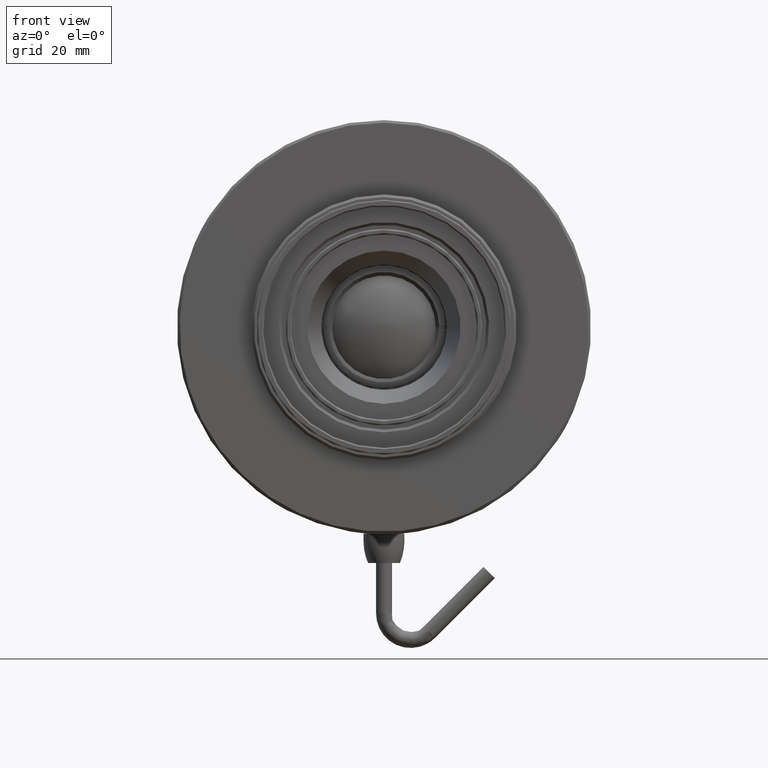
[diagram: clean part render]
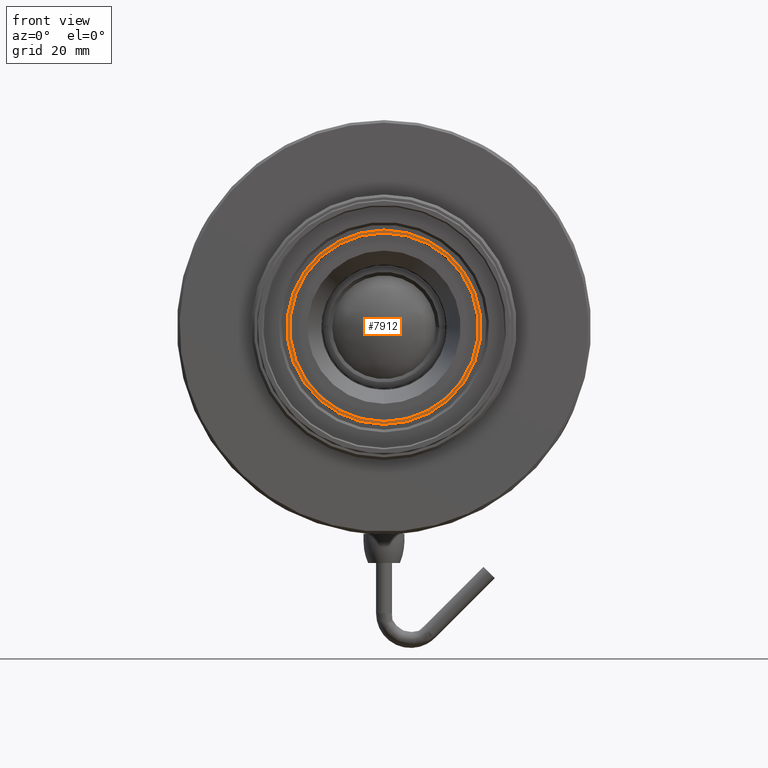
[diagram: same view with one face highlighted and labeled with its STEP entity id]
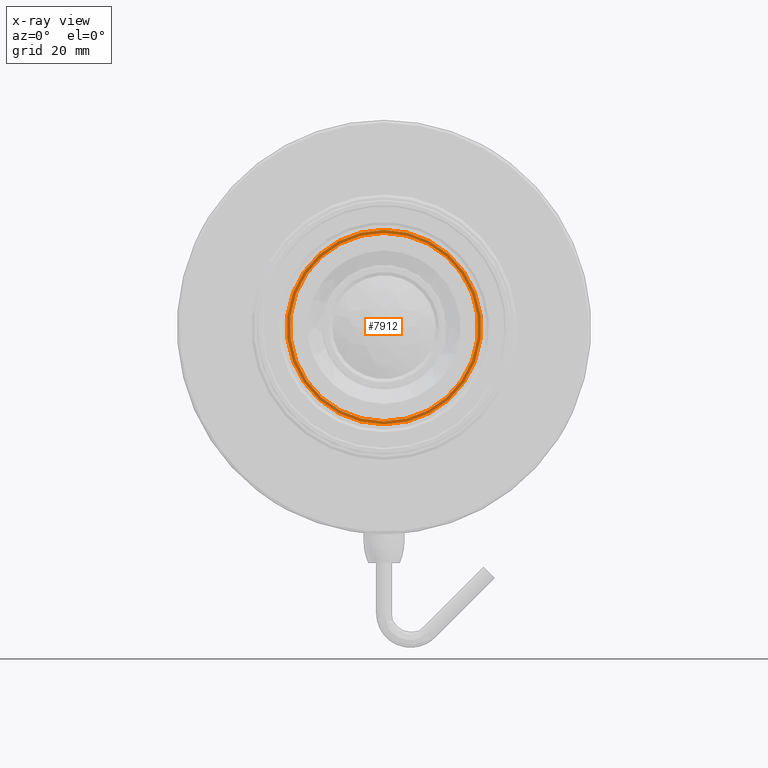
[diagram: x-ray of the same camera — body ghosted, the highlighted face saturated]
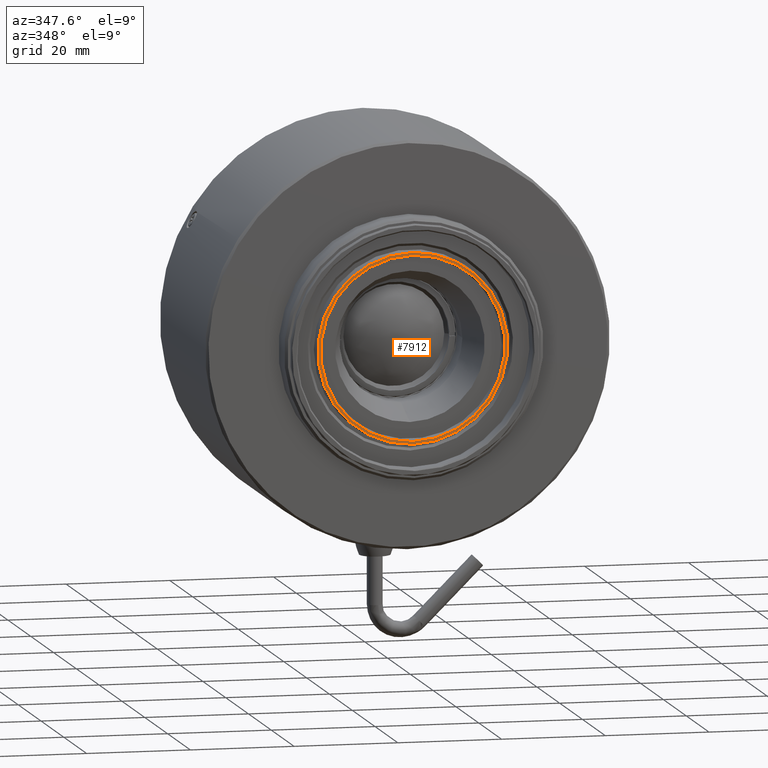
[diagram: same view with one face highlighted and labeled with its STEP entity id]
A machine part, front view. The second image highlights one B-rep face of the part: STEP entity #7912.
The next image is the same camera in x-ray: the body ghosted, the highlighted face saturated — about 0% of this face is hidden behind the body in this view.
A second angle (auxiliary view) of the same face is appended — the face is thin or edge-on in the first view.
In plain terms, the highlighted planar face has unit normal (0, 1, -0).
Its self-contained STEP definition (entity closure, byte-faithful):
#638 = EDGE_LOOP ( 'NONE', ( #12016 ) ) ;
#797 = PLANE ( 'NONE',  #1138 ) ;
#1138 = AXIS2_PLACEMENT_3D ( 'NONE', #8056, #4508, #4323 ) ;
#2638 = DIRECTION ( 'NONE',  ( 0.000000000000000000, 0.000000000000000000, -1.000000000000000000 ) ) ;
#4323 = DIRECTION ( 'NONE',  ( -1.000000000000000000, 6.123031769111889989E-17, 0.000000000000000000 ) ) ;
#4508 = DIRECTION ( 'NONE',  ( 6.123031769111889989E-17, 1.000000000000000000, -0.000000000000000000 ) ) ;
#4881 = AXIS2_PLACEMENT_3D ( 'NONE', #9074, #8216, #5258 ) ;
#5100 = VERTEX_POINT ( 'NONE', #8790 ) ;
#5258 = DIRECTION ( 'NONE',  ( 0.000000000000000000, 0.000000000000000000, 1.000000000000000000 ) ) ;
#5357 = DIRECTION ( 'NONE',  ( 0.000000000000000000, -1.000000000000000000, 0.000000000000000000 ) ) ;
#6267 = CARTESIAN_POINT ( 'NONE',  ( -3.469446951953614189E-15, -62.10603120081729855, -1.734723475976810250E-15 ) ) ;
#6409 = AXIS2_PLACEMENT_3D ( 'NONE', #6267, #5357, #2638 ) ;
#7074 = CARTESIAN_POINT ( 'NONE',  ( -3.469446951953614189E-15, -62.10603120081729145, 18.30000000074510069 ) ) ;
#7381 = CIRCLE ( 'NONE', #4881, 18.30000000074510069 ) ;
#7912 = ADVANCED_FACE ( 'NONE', ( #9823, #10867 ), #797, .F. ) ;
#7937 = CIRCLE ( 'NONE', #6409, 17.75000000000000355 ) ;
#8056 = CARTESIAN_POINT ( 'NONE',  ( -3.258067114780390426E-15, -62.10603120081729855, 17.75000000000000355 ) ) ;
#8216 = DIRECTION ( 'NONE',  ( 0.000000000000000000, 1.000000000000000000, -1.875376730785738212E-16 ) ) ;
#8790 = CARTESIAN_POINT ( 'NONE',  ( -3.469446951953614189E-15, -62.10603120081729855, -17.75000000000000711 ) ) ;
#9074 = CARTESIAN_POINT ( 'NONE',  ( -3.469446951953614189E-15, -62.10603120081729145, -1.697215941358921316E-15 ) ) ;
#9525 = EDGE_CURVE ( 'NONE', #5100, #5100, #7937, .T. ) ;
#9823 = FACE_BOUND ( 'NONE', #638, .T. ) ;
#10199 = EDGE_LOOP ( 'NONE', ( #10767 ) ) ;
#10672 = EDGE_CURVE ( 'NONE', #10789, #10789, #7381, .T. ) ;
#10767 = ORIENTED_EDGE ( 'NONE', *, *, #10672, .F. ) ;
#10789 = VERTEX_POINT ( 'NONE', #7074 ) ;
#10867 = FACE_OUTER_BOUND ( 'NONE', #10199, .T. ) ;
#12016 = ORIENTED_EDGE ( 'NONE', *, *, #9525, .F. ) ;